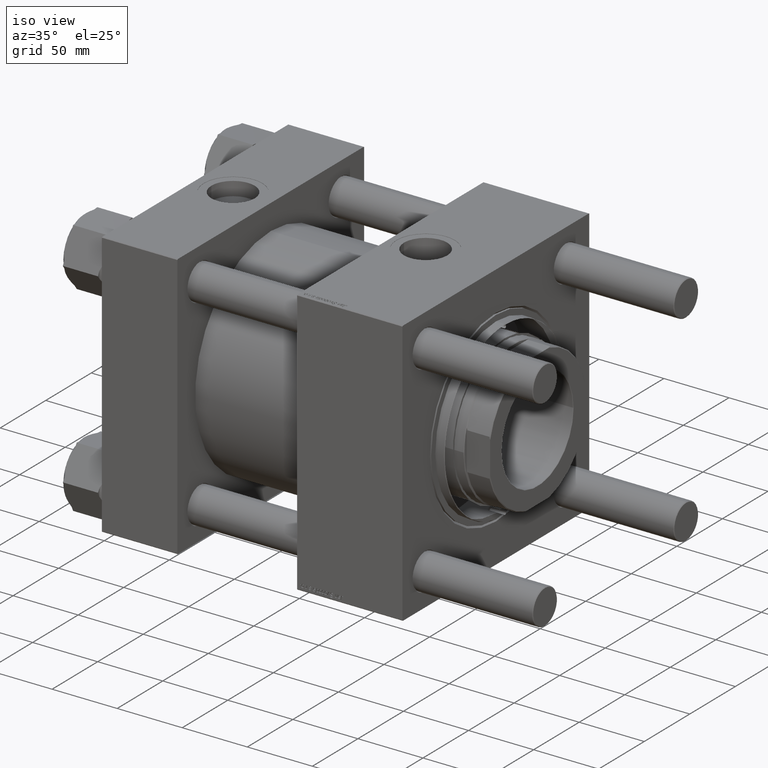
[diagram: clean part render]
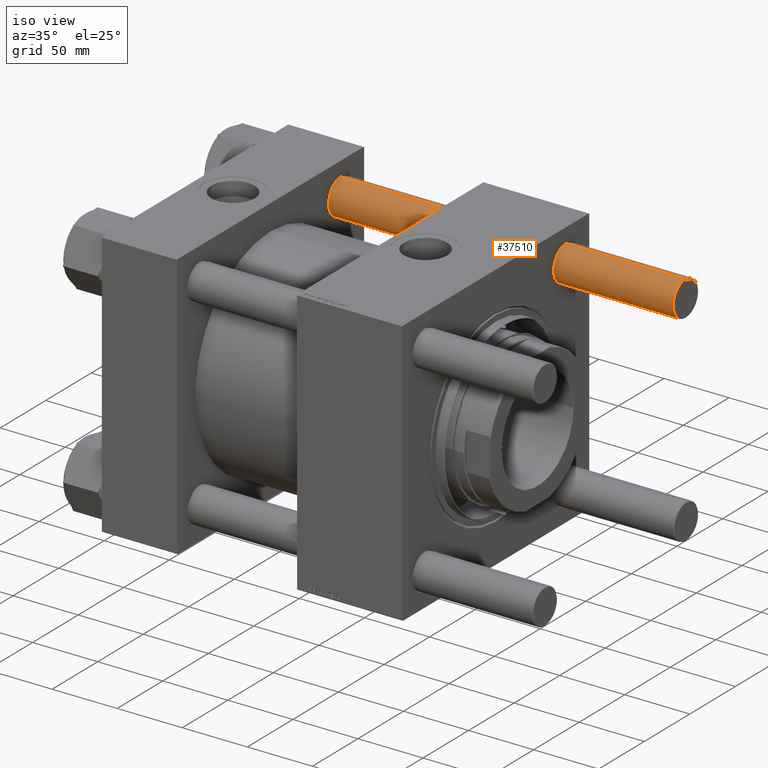
[diagram: same view with one face highlighted and labeled with its STEP entity id]
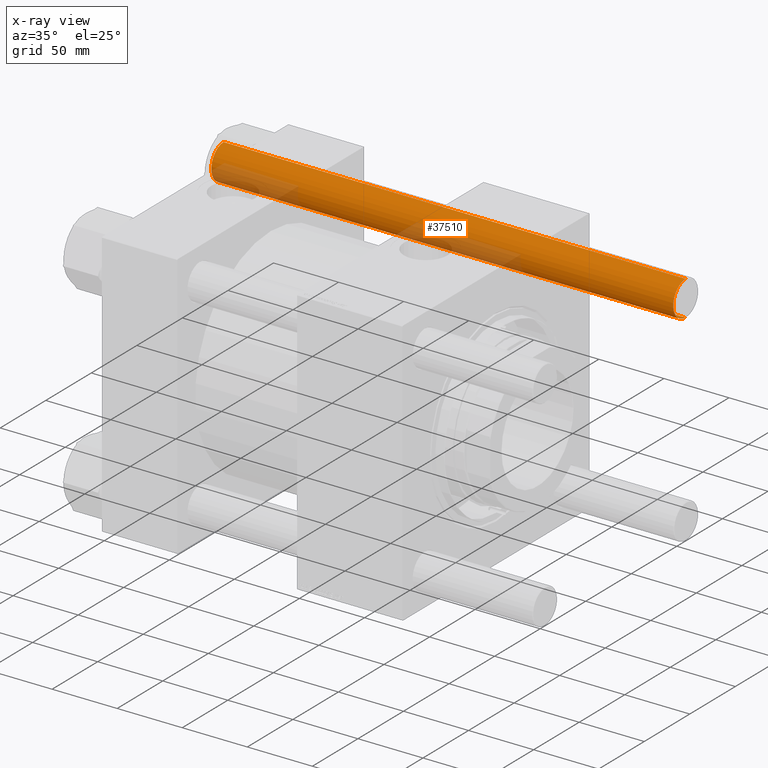
[diagram: x-ray of the same camera — body ghosted, the highlighted face saturated]
A machine part, iso view. The second image highlights one B-rep face of the part: STEP entity #37510.
The next image is the same camera in x-ray: the body ghosted, the highlighted face saturated — about 19% of this face is hidden behind the body in this view.
In plain terms, the highlighted cylindrical surface (edge-blend (fillet) strip) has radius 13.5 mm, axis along (1, -0, -0).
Its self-contained STEP definition (entity closure, byte-faithful):
#565 = ORIENTED_EDGE ( 'NONE', *, *, #30063, .T. ) ;
#1181 = CARTESIAN_POINT ( 'NONE',  ( 0.000000000000000000, 0.000000000000000000, 0.5000000000000004441 ) ) ;
#4586 = DIRECTION ( 'NONE',  ( -0.000000000000000000, -0.000000000000000000, -1.000000000000000000 ) ) ;
#6587 = EDGE_CURVE ( 'NONE', #33997, #55895, #12519, .T. ) ;
#7156 = AXIS2_PLACEMENT_3D ( 'NONE', #49453, #9715, #10002 ) ;
#8668 = CARTESIAN_POINT ( 'NONE',  ( -13.50000000000000000, 0.000000000000000000, 355.5000000000000000 ) ) ;
#8690 = DIRECTION ( 'NONE',  ( -0.000000000000000000, -0.000000000000000000, -1.000000000000000000 ) ) ;
#9715 = DIRECTION ( 'NONE',  ( 0.000000000000000000, 0.000000000000000000, -1.000000000000000000 ) ) ;
#10002 = DIRECTION ( 'NONE',  ( 1.000000000000000000, 0.000000000000000000, 0.000000000000000000 ) ) ;
#10196 = DIRECTION ( 'NONE',  ( -0.000000000000000000, -0.000000000000000000, 1.000000000000000000 ) ) ;
#10342 = ORIENTED_EDGE ( 'NONE', *, *, #6587, .F. ) ;
#12027 = EDGE_LOOP ( 'NONE', ( #10342, #565, #47397, #23541 ) ) ;
#12519 = LINE ( 'NONE', #25864, #48296 ) ;
#18910 = DIRECTION ( 'NONE',  ( 1.000000000000000000, 0.000000000000000000, 0.000000000000000000 ) ) ;
#19810 = CARTESIAN_POINT ( 'NONE',  ( -13.50000000000000000, 0.000000000000000000, 0.5000000000000004441 ) ) ;
#21493 = DIRECTION ( 'NONE',  ( -0.000000000000000000, -0.000000000000000000, -1.000000000000000000 ) ) ;
#22033 = DIRECTION ( 'NONE',  ( -1.000000000000000000, 0.000000000000000000, 0.000000000000000000 ) ) ;
#23231 = VERTEX_POINT ( 'NONE', #8668 ) ;
#23541 = ORIENTED_EDGE ( 'NONE', *, *, #47335, .T. ) ;
#23830 = CIRCLE ( 'NONE', #7156, 13.50000000000000000 ) ;
#25864 = CARTESIAN_POINT ( 'NONE',  ( 13.50000000000000000, 1.653273178848926867E-15, 356.0000000000000000 ) ) ;
#26124 = CIRCLE ( 'NONE', #27058, 13.50000000000000000 ) ;
#27058 = AXIS2_PLACEMENT_3D ( 'NONE', #1181, #10196, #18910 ) ;
#27926 = VERTEX_POINT ( 'NONE', #19810 ) ;
#29666 = CARTESIAN_POINT ( 'NONE',  ( 13.50000000000000000, 1.653273178848926867E-15, 355.5000000000000000 ) ) ;
#30063 = EDGE_CURVE ( 'NONE', #33997, #23231, #23830, .T. ) ;
#33997 = VERTEX_POINT ( 'NONE', #29666 ) ;
#36632 = EDGE_CURVE ( 'NONE', #23231, #27926, #39153, .T. ) ;
#37510 = ADVANCED_FACE ( 'NONE', ( #53042 ), #43821, .T. ) ;
#39153 = LINE ( 'NONE', #43241, #42576 ) ;
#42576 = VECTOR ( 'NONE', #8690, 1000.000000000000000 ) ;
#43241 = CARTESIAN_POINT ( 'NONE',  ( -13.50000000000000000, 0.000000000000000000, 356.0000000000000000 ) ) ;
#43821 = CYLINDRICAL_SURFACE ( 'NONE', #44492, 13.50000000000000000 ) ;
#44492 = AXIS2_PLACEMENT_3D ( 'NONE', #56847, #4586, #22033 ) ;
#47335 = EDGE_CURVE ( 'NONE', #27926, #55895, #26124, .T. ) ;
#47397 = ORIENTED_EDGE ( 'NONE', *, *, #36632, .T. ) ;
#48296 = VECTOR ( 'NONE', #21493, 1000.000000000000000 ) ;
#49453 = CARTESIAN_POINT ( 'NONE',  ( 0.000000000000000000, 0.000000000000000000, 355.5000000000000000 ) ) ;
#53042 = FACE_OUTER_BOUND ( 'NONE', #12027, .T. ) ;
#55895 = VERTEX_POINT ( 'NONE', #57047 ) ;
#56847 = CARTESIAN_POINT ( 'NONE',  ( 0.000000000000000000, 0.000000000000000000, 356.0000000000000000 ) ) ;
#57047 = CARTESIAN_POINT ( 'NONE',  ( 13.50000000000000000, 1.653273178848926867E-15, 0.5000000000000004441 ) ) ;